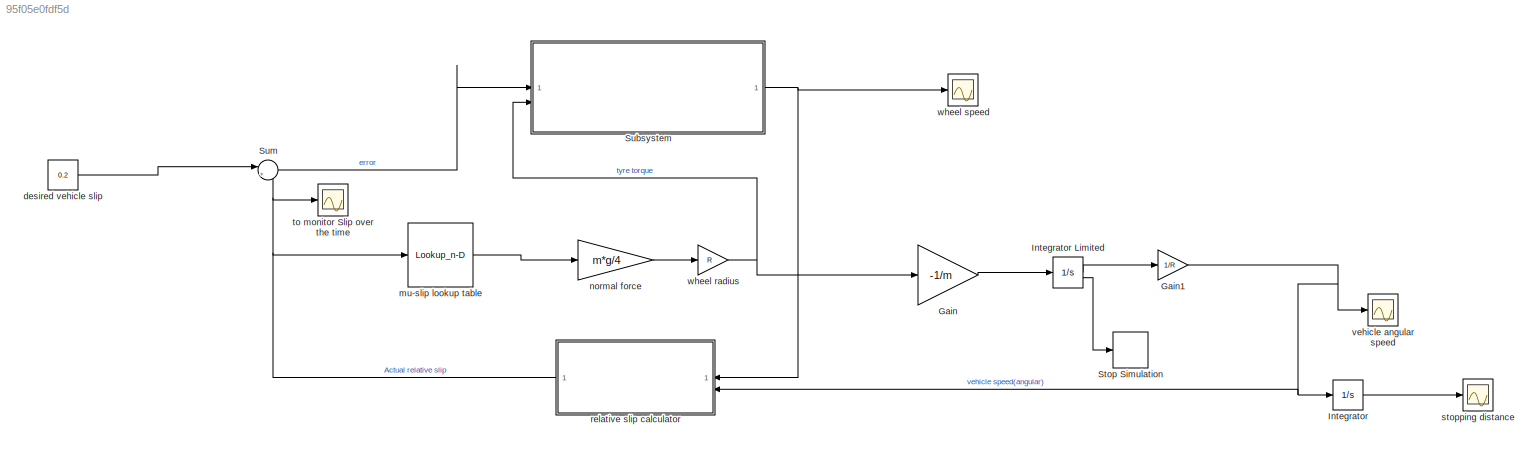
MODEL slx_95f05e0fdf5d
KIND model
CONFIG AbsTol = auto
CONFIG EnableMultiTasking = off
CONFIG FixedStep = auto
CONFIG MaxStep = auto
CONFIG MinStep = auto
CONFIG RelTol = 1e-3
CONFIG SampleTimeConstraint = Unconstrained
CONFIG SolverName = VariableStepAuto
CONFIG StartTime = 0.0
CONFIG StopTime = 30
WORKSPACE source: mxarray member
WORKSPACE R = 1.25
BLOCK [Gain] Gain
  Gain = -1/m
BLOCK [Gain] Gain1
  Gain = 1/R
BLOCK [Integrator] Integrator
BLOCK [Integrator] Integrator Limited
  InitialCondition = v0
  LimitOutput = on
  LowerSaturationLimit = 0
  ShowSaturationPort = on
  UpperSaturationLimit = 1000
BLOCK [Stop] Stop Simulation
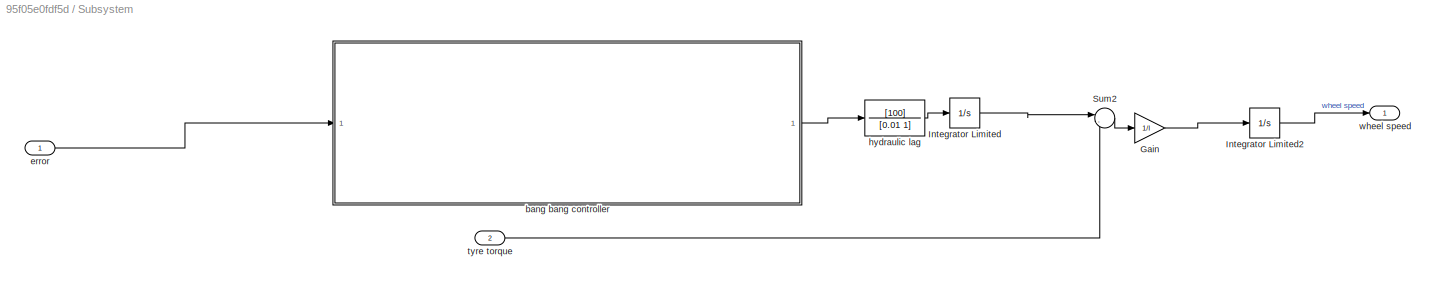
BLOCK [SubSystem] Subsystem
BLOCK [TransferFcn] Subsystem/ hydraulic lag
  Denominator = [0.01 1]
  Numerator = [100]
BLOCK [Gain] Subsystem/Gain
  Gain = 1/I
BLOCK [Integrator] Subsystem/Integrator Limited
  LimitOutput = on
  LowerSaturationLimit = 0
  UpperSaturationLimit = 1000
BLOCK [Integrator] Subsystem/Integrator Limited2
  InitialCondition = v0/R
  LimitOutput = on
  LowerSaturationLimit = 0
  UpperSaturationLimit = 1000
BLOCK [Sum] Subsystem/Sum2
  Inputs = |-+
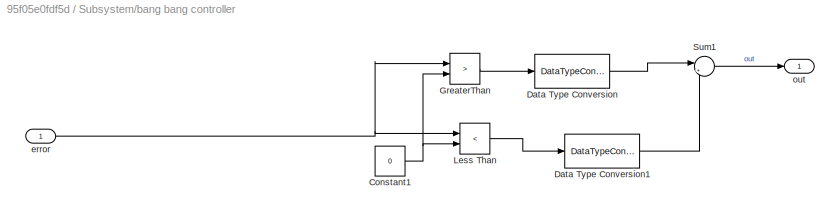
BLOCK [SubSystem] Subsystem/bang bang controller 
BLOCK [Constant] Subsystem/bang bang controller /Constant1
  Value = 0
BLOCK [DataTypeConversion] Subsystem/bang bang controller /Data Type Conversion
  OutDataTypeStr = double
  SaturateOnIntegerOverflow = off
BLOCK [DataTypeConversion] Subsystem/bang bang controller /Data Type Conversion1
  OutDataTypeStr = double
  SaturateOnIntegerOverflow = off
BLOCK [RelationalOperator] Subsystem/bang bang controller /GreaterThan
  InputSameDT = off
  Operator = >
  OutDataTypeStr = boolean
  RndMeth = Simplest
BLOCK [RelationalOperator] Subsystem/bang bang controller /Less Than
  InputSameDT = off
  Operator = <
  OutDataTypeStr = boolean
  RndMeth = Simplest
BLOCK [Sum] Subsystem/bang bang controller /Sum1
  Inputs = |+-
BLOCK [Inport] Subsystem/bang bang controller /error
BLOCK [Outport] Subsystem/bang bang controller /out
BLOCK [Inport] Subsystem/error
BLOCK [Inport] Subsystem/tyre torque
  Port = 2
BLOCK [Outport] Subsystem/wheel speed
BLOCK [Sum] Sum
  Inputs = |+-
BLOCK [Constant] desired vehicle slip
  Value = 0.2
BLOCK [Lookup_n-D] mu-slip lookup table
  BreakpointsForDimension1 = [0;0.050000000000000003;0.10000000000000001;0.14999999999999999;0.20000000000000001;0.25;0.29999999999999999;0.34999999999999998;0.40000000000000002;0.45000000000000001;0.5;0.55000000000000004;0.59999999999999998;0.65000000000000002;0.69999999999999996;0.75;0.80000000000000004;0.84999999999999998;0.90000000000000002;0.94999999999999996;1]
  InputPortMap = u0
  InternalRulePriority = Speed
  NumberOfTableDimensions = 1
  RndMeth = Simplest
  Table = [0;0.40000000000000002;0.80000000000000004;0.96999999999999997;1;0.97999999999999998;0.95999999999999996;0.93999999999999995;0.92000000000000004;0.90000000000000002;0.88;0.85499999999999998;0.82999999999999996;0.81000000000000005;0.79000000000000004;0.77000000000000002;0.75;0.72999999999999998;0.71999999999999997;0.70999999999999996;0.69999999999999996]
BLOCK [Gain] normal force
  Gain = m*g/4
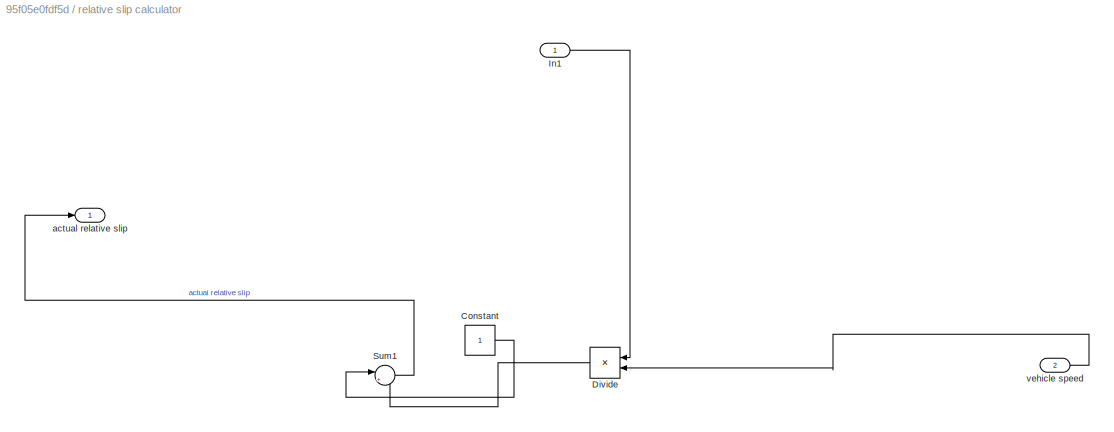
BLOCK [SubSystem] relative slip calculator
BLOCK [Constant] relative slip calculator/Constant
BLOCK [Product] relative slip calculator/Divide
  Inputs = */
BLOCK [Inport] relative slip calculator/In1
BLOCK [Sum] relative slip calculator/Sum1
  Inputs = |+-
BLOCK [Outport] relative slip calculator/actual relative slip
BLOCK [Inport] relative slip calculator/vehicle speed
  Port = 2
BLOCK [Scope] stopping distance
  Floating = off
  NumInputPorts = 1
  ScopeSpecificationString = Simulink.scopes.TimeScopeBlockCfg('CurrentConfiguration', extmgr.ConfigurationSet(extmgr.Configuration('Core','General UI',true),extmgr.Configuration('Core','Source UI',true),extmgr.Configuration('Sources','WiredSimulink',true,'DataLoggingVariableName','ScopeData2'),extmgr.Configuration('Visuals','Time Domain',true,'SerializedDisplays',{struct('MinYLimReal','-38.11103','MaxYLimReal','342.9993','YL...<+1464ch>
BLOCK [Scope] to monitor Slip over the time
  Floating = off
  NumInputPorts = 1
  ScopeSpecificationString = Simulink.scopes.TimeScopeBlockCfg('CurrentConfiguration', extmgr.ConfigurationSet(extmgr.Configuration('Core','General UI',true),extmgr.Configuration('Core','Source UI',true),extmgr.Configuration('Sources','WiredSimulink',true,'DataLoggingVariableName','ScopeData3'),extmgr.Configuration('Visuals','Time Domain',true,'SerializedDisplays',{struct('MinYLimReal','-0.125','MaxYLimReal','1.125','YLabelRe...<+1456ch>
BLOCK [Scope] vehicle angular speed
  Floating = off
  NumInputPorts = 1
  ScopeSpecificationString = Simulink.scopes.TimeScopeBlockCfg('CurrentConfiguration', extmgr.ConfigurationSet(extmgr.Configuration('Core','General UI',true),extmgr.Configuration('Core','Source UI',true),extmgr.Configuration('Sources','WiredSimulink',true,'DataLoggingVariableName','ScopeData1'),extmgr.Configuration('Visuals','Time Domain',true,'SerializedDisplays',{struct('MinYLimReal','-4.38744','MaxYLimReal','39.5986','YLab...<+1470ch>
BLOCK [Gain] wheel radius
  Gain = R
BLOCK [Scope] wheel speed
  Floating = off
  NumInputPorts = 1
  ScopeSpecificationString = Simulink.scopes.TimeScopeBlockCfg('CurrentConfiguration', extmgr.ConfigurationSet(extmgr.Configuration('Core','General UI',true,'FigureColor',[1 1 1]),extmgr.Configuration('Core','Source UI',true),extmgr.Configuration('Sources','WiredSimulink',true),extmgr.Configuration('Visuals','Time Domain',true,'SerializedDisplays',{struct('MinYLimReal','-4.4','MaxYLimReal','39.6','YLabelReal','speed','MinYLim...<+1464ch>
NET Gain1:1 -> Integrator:1, relative slip calculator:2, vehicle angular speed:1
LINE Gain:1 -> Integrator Limited:1
LINE Integrator Limited:1 -> Gain1:1
LINE Integrator Limited:2 -> Stop Simulation:1
LINE Integrator:1 -> stopping distance:1
LINE Subsystem/ hydraulic lag:1 -> Subsystem/Integrator Limited:1
LINE Subsystem/Gain:1 -> Subsystem/Integrator Limited2:1
LINE Subsystem/Integrator Limited2:1 -> Subsystem/wheel speed:1
LINE Subsystem/Integrator Limited:1 -> Subsystem/Sum2:1
LINE Subsystem/Sum2:1 -> Subsystem/Gain:1
NET Subsystem/bang bang controller /Constant1:1 -> Subsystem/bang bang controller /GreaterThan:2, Subsystem/bang bang controller /Less Than:2
LINE Subsystem/bang bang controller /Data Type Conversion1:1 -> Subsystem/bang bang controller /Sum1:2
LINE Subsystem/bang bang controller /Data Type Conversion:1 -> Subsystem/bang bang controller /Sum1:1
LINE Subsystem/bang bang controller /GreaterThan:1 -> Subsystem/bang bang controller /Data Type Conversion:1
LINE Subsystem/bang bang controller /Less Than:1 -> Subsystem/bang bang controller /Data Type Conversion1:1
LINE Subsystem/bang bang controller /Sum1:1 -> Subsystem/bang bang controller /out:1
NET Subsystem/bang bang controller /error:1 -> Subsystem/bang bang controller /GreaterThan:1, Subsystem/bang bang controller /Less Than:1
LINE Subsystem/bang bang controller :1 -> Subsystem/ hydraulic lag:1
LINE Subsystem/error:1 -> Subsystem/bang bang controller :1
LINE Subsystem/tyre torque:1 -> Subsystem/Sum2:2
NET Subsystem:1 -> relative slip calculator:1, wheel speed:1
LINE Sum:1 -> Subsystem:1
LINE desired vehicle slip:1 -> Sum:1
LINE mu-slip lookup table:1 -> normal force:1
LINE normal force:1 -> wheel radius:1
LINE relative slip calculator/Constant:1 -> relative slip calculator/Sum1:1
LINE relative slip calculator/Divide:1 -> relative slip calculator/Sum1:2
LINE relative slip calculator/In1:1 -> relative slip calculator/Divide:1
LINE relative slip calculator/Sum1:1 -> relative slip calculator/actual relative slip:1
LINE relative slip calculator/vehicle speed:1 -> relative slip calculator/Divide:2
NET relative slip calculator:1 -> Sum:2, mu-slip lookup table:1, to monitor Slip over the time:1
NET wheel radius:1 -> Gain:1, Subsystem:2
note: NET lines group one-source signal fan-out (src -> all destinations, sorted); 1:1 wires keep LINE
